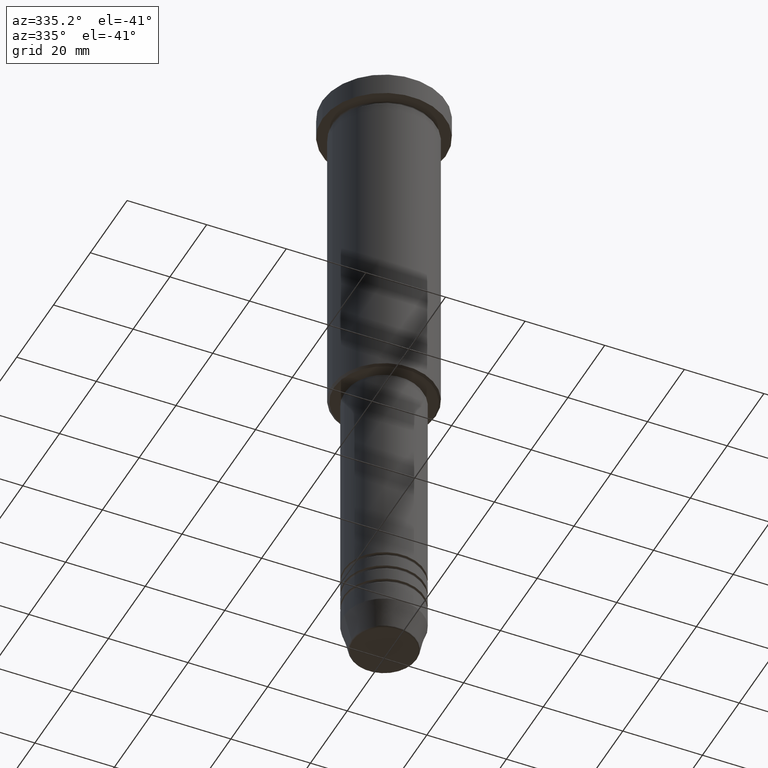
[diagram: clean part render]
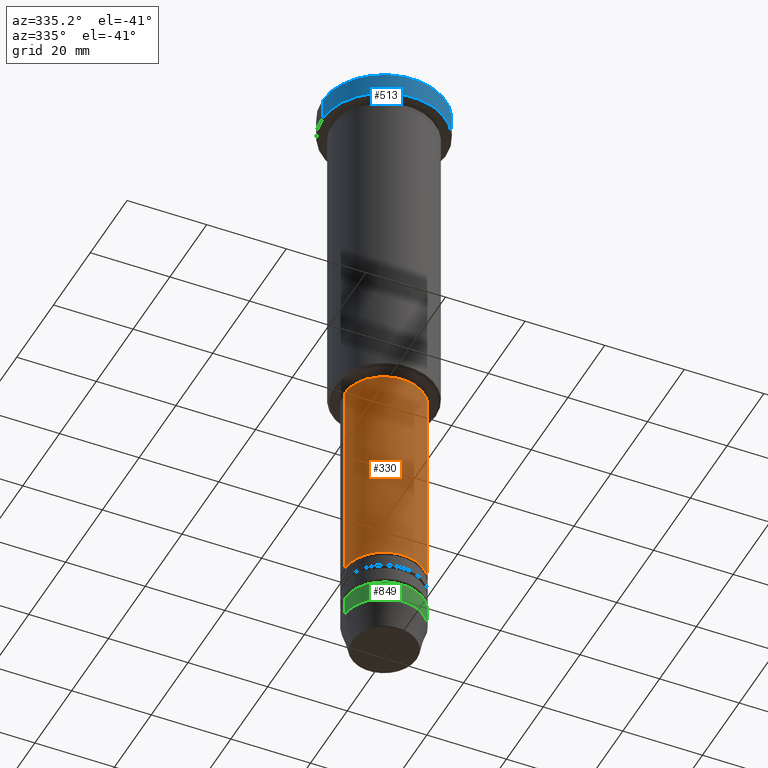
[diagram: same view with three faces highlighted in distinct colors, each labeled with its STEP entity id]
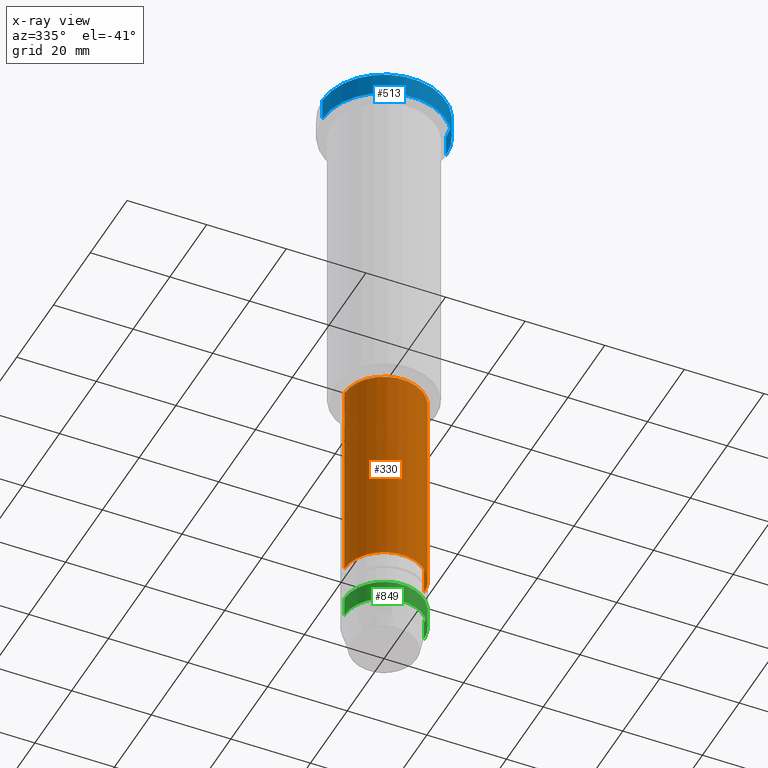
[diagram: x-ray of the same camera — body ghosted, the three highlighted faces saturated]
A machine part, auxiliary view with three faces highlighted in distinct colors.
The next image is the same camera in x-ray (body ghosted, the three faces saturated) — at least one of them is partly hidden behind the body in this view.
Their STEP definitions:

[orange] entity #330 — the highlighted cylindrical surface (partial cylindrical patch) has radius 10 mm, axis along (-0, -0, 1).
#59 = ORIENTED_EDGE ( 'NONE', *, *, #904, .F. ) ;
#83 = DIRECTION ( 'NONE',  ( -0.000000000000000000, -0.000000000000000000, 1.000000000000000000 ) ) ;
#89 = DIRECTION ( 'NONE',  ( 1.000000000000000000, 0.000000000000000000, 0.000000000000000000 ) ) ;
#120 = LINE ( 'NONE', #658, #1022 ) ;
#139 = DIRECTION ( 'NONE',  ( -0.000000000000000000, -0.000000000000000000, 1.000000000000000000 ) ) ;
#158 = VERTEX_POINT ( 'NONE', #476 ) ;
#257 = VERTEX_POINT ( 'NONE', #1084 ) ;
#262 = CIRCLE ( 'NONE', #1134, 10.00000000000000178 ) ;
#296 = DIRECTION ( 'NONE',  ( 1.000000000000000000, 0.000000000000000000, 0.000000000000000000 ) ) ;
#326 = CARTESIAN_POINT ( 'NONE',  ( -9.999999999999998224, 1.224646799147353256E-15, -86.99999999999997158 ) ) ;
#330 = ADVANCED_FACE ( 'NONE', ( #537 ), #907, .T. ) ;
#358 = CARTESIAN_POINT ( 'NONE',  ( 0.000000000000000000, 0.000000000000000000, 0.000000000000000000 ) ) ;
#367 = DIRECTION ( 'NONE',  ( -0.000000000000000000, -0.000000000000000000, 1.000000000000000000 ) ) ;
#400 = LINE ( 'NONE', #956, #646 ) ;
#418 = AXIS2_PLACEMENT_3D ( 'NONE', #427, #558, #478 ) ;
#427 = CARTESIAN_POINT ( 'NONE',  ( 0.000000000000000000, 0.000000000000000000, -86.99999999999997158 ) ) ;
#466 = ORIENTED_EDGE ( 'NONE', *, *, #675, .T. ) ;
#476 = CARTESIAN_POINT ( 'NONE',  ( 10.00000000000000178, 0.000000000000000000, -139.9999999999998579 ) ) ;
#478 = DIRECTION ( 'NONE',  ( 1.000000000000000000, 0.000000000000000000, 0.000000000000000000 ) ) ;
#523 = ORIENTED_EDGE ( 'NONE', *, *, #614, .T. ) ;
#537 = FACE_OUTER_BOUND ( 'NONE', #550, .T. ) ;
#550 = EDGE_LOOP ( 'NONE', ( #59, #523, #466, #1169 ) ) ;
#558 = DIRECTION ( 'NONE',  ( -0.000000000000000000, -0.000000000000000000, 1.000000000000000000 ) ) ;
#614 = EDGE_CURVE ( 'NONE', #1079, #158, #262, .T. ) ;
#628 = CIRCLE ( 'NONE', #418, 9.999999999999998224 ) ;
#646 = VECTOR ( 'NONE', #139, 1000.000000000000000 ) ;
#658 = CARTESIAN_POINT ( 'NONE',  ( 10.00000000000000000, 0.000000000000000000, 0.000000000000000000 ) ) ;
#675 = EDGE_CURVE ( 'NONE', #158, #257, #120, .T. ) ;
#739 = CARTESIAN_POINT ( 'NONE',  ( -10.00000000000000178, 1.224646799147353454E-15, -139.9999999999998579 ) ) ;
#869 = VERTEX_POINT ( 'NONE', #326 ) ;
#904 = EDGE_CURVE ( 'NONE', #1079, #869, #400, .T. ) ;
#907 = CYLINDRICAL_SURFACE ( 'NONE', #1058, 10.00000000000000000 ) ;
#956 = CARTESIAN_POINT ( 'NONE',  ( -10.00000000000000000, 1.224646799147353256E-15, 0.000000000000000000 ) ) ;
#1022 = VECTOR ( 'NONE', #367, 1000.000000000000000 ) ;
#1058 = AXIS2_PLACEMENT_3D ( 'NONE', #358, #83, #89 ) ;
#1079 = VERTEX_POINT ( 'NONE', #739 ) ;
#1084 = CARTESIAN_POINT ( 'NONE',  ( 9.999999999999998224, 0.000000000000000000, -86.99999999999997158 ) ) ;
#1106 = DIRECTION ( 'NONE',  ( -0.000000000000000000, -0.000000000000000000, 1.000000000000000000 ) ) ;
#1110 = CARTESIAN_POINT ( 'NONE',  ( 0.000000000000000000, 0.000000000000000000, -139.9999999999998579 ) ) ;
#1134 = AXIS2_PLACEMENT_3D ( 'NONE', #1110, #1106, #296 ) ;
#1169 = ORIENTED_EDGE ( 'NONE', *, *, #1173, .F. ) ;
#1173 = EDGE_CURVE ( 'NONE', #869, #257, #628, .T. ) ;

[blue] entity #513 — the highlighted cylindrical surface (partial cylindrical patch) has radius 15.5 mm, axis along (-0, -0, 1).
#10 = CIRCLE ( 'NONE', #803, 15.50000000000000000 ) ;
#28 = CIRCLE ( 'NONE', #548, 15.50000000000000000 ) ;
#29 = ORIENTED_EDGE ( 'NONE', *, *, #864, .F. ) ;
#40 = LINE ( 'NONE', #223, #71 ) ;
#71 = VECTOR ( 'NONE', #608, 1000.000000000000000 ) ;
#85 = DIRECTION ( 'NONE',  ( 1.000000000000000000, 0.000000000000000000, 0.000000000000000000 ) ) ;
#124 = ORIENTED_EDGE ( 'NONE', *, *, #932, .T. ) ;
#125 = CARTESIAN_POINT ( 'NONE',  ( -15.50000000000000000, 1.898202538678397557E-15, -0.4999999999999848455 ) ) ;
#145 = CARTESIAN_POINT ( 'NONE',  ( -15.50000000000000000, 1.898202538678397557E-15, 0.000000000000000000 ) ) ;
#184 = CYLINDRICAL_SURFACE ( 'NONE', #987, 15.50000000000000000 ) ;
#223 = CARTESIAN_POINT ( 'NONE',  ( 15.50000000000000000, 0.000000000000000000, 0.000000000000000000 ) ) ;
#261 = CARTESIAN_POINT ( 'NONE',  ( 15.50000000000000000, 0.000000000000000000, -0.4999999999999848455 ) ) ;
#286 = CARTESIAN_POINT ( 'NONE',  ( 0.000000000000000000, 0.000000000000000000, -5.999999999999995559 ) ) ;
#332 = CARTESIAN_POINT ( 'NONE',  ( 0.000000000000000000, 0.000000000000000000, -0.4999999999999848455 ) ) ;
#340 = DIRECTION ( 'NONE',  ( 0.000000000000000000, 0.000000000000000000, -1.000000000000000000 ) ) ;
#439 = DIRECTION ( 'NONE',  ( -0.000000000000000000, -0.000000000000000000, 1.000000000000000000 ) ) ;
#507 = VERTEX_POINT ( 'NONE', #261 ) ;
#512 = DIRECTION ( 'NONE',  ( -0.000000000000000000, -0.000000000000000000, 1.000000000000000000 ) ) ;
#513 = ADVANCED_FACE ( 'NONE', ( #723 ), #184, .T. ) ;
#520 = VERTEX_POINT ( 'NONE', #825 ) ;
#548 = AXIS2_PLACEMENT_3D ( 'NONE', #332, #340, #85 ) ;
#556 = EDGE_LOOP ( 'NONE', ( #29, #1143, #988, #124 ) ) ;
#597 = LINE ( 'NONE', #145, #840 ) ;
#599 = VERTEX_POINT ( 'NONE', #125 ) ;
#608 = DIRECTION ( 'NONE',  ( -0.000000000000000000, -0.000000000000000000, 1.000000000000000000 ) ) ;
#630 = CARTESIAN_POINT ( 'NONE',  ( 0.000000000000000000, 0.000000000000000000, 0.000000000000000000 ) ) ;
#709 = DIRECTION ( 'NONE',  ( 1.000000000000000000, 0.000000000000000000, 0.000000000000000000 ) ) ;
#723 = FACE_OUTER_BOUND ( 'NONE', #556, .T. ) ;
#753 = DIRECTION ( 'NONE',  ( 1.000000000000000000, 0.000000000000000000, 0.000000000000000000 ) ) ;
#803 = AXIS2_PLACEMENT_3D ( 'NONE', #286, #1115, #753 ) ;
#825 = CARTESIAN_POINT ( 'NONE',  ( 15.50000000000000000, 0.000000000000000000, -5.999999999999995559 ) ) ;
#837 = CARTESIAN_POINT ( 'NONE',  ( -15.50000000000000000, 1.898202538678397557E-15, -5.999999999999995559 ) ) ;
#840 = VECTOR ( 'NONE', #512, 1000.000000000000000 ) ;
#864 = EDGE_CURVE ( 'NONE', #1096, #599, #597, .T. ) ;
#885 = EDGE_CURVE ( 'NONE', #520, #507, #40, .T. ) ;
#932 = EDGE_CURVE ( 'NONE', #507, #599, #28, .T. ) ;
#987 = AXIS2_PLACEMENT_3D ( 'NONE', #630, #439, #709 ) ;
#988 = ORIENTED_EDGE ( 'NONE', *, *, #885, .T. ) ;
#1086 = EDGE_CURVE ( 'NONE', #1096, #520, #10, .T. ) ;
#1096 = VERTEX_POINT ( 'NONE', #837 ) ;
#1115 = DIRECTION ( 'NONE',  ( -0.000000000000000000, -0.000000000000000000, 1.000000000000000000 ) ) ;
#1143 = ORIENTED_EDGE ( 'NONE', *, *, #1086, .T. ) ;

[green] entity #849 — the highlighted cylindrical surface (partial cylindrical patch) has radius 10 mm, axis along (-0, -0, 1).
#27 = DIRECTION ( 'NONE',  ( 1.000000000000000000, 0.000000000000000000, 0.000000000000000000 ) ) ;
#33 = ORIENTED_EDGE ( 'NONE', *, *, #366, .T. ) ;
#58 = LINE ( 'NONE', #232, #1098 ) ;
#96 = VERTEX_POINT ( 'NONE', #137 ) ;
#116 = CARTESIAN_POINT ( 'NONE',  ( 0.000000000000000000, 0.000000000000000000, -148.9999999999999716 ) ) ;
#121 = EDGE_CURVE ( 'NONE', #1003, #188, #1027, .T. ) ;
#123 = CARTESIAN_POINT ( 'NONE',  ( -10.00000000000000000, 1.224646799147353256E-15, 0.000000000000000000 ) ) ;
#137 = CARTESIAN_POINT ( 'NONE',  ( 10.00000000000000000, 0.000000000000000000, -153.9999999999999716 ) ) ;
#152 = ORIENTED_EDGE ( 'NONE', *, *, #121, .F. ) ;
#188 = VERTEX_POINT ( 'NONE', #227 ) ;
#192 = EDGE_CURVE ( 'NONE', #96, #533, #58, .T. ) ;
#224 = AXIS2_PLACEMENT_3D ( 'NONE', #676, #600, #27 ) ;
#227 = CARTESIAN_POINT ( 'NONE',  ( -10.00000000000000000, 1.224646799147353256E-15, -148.9999999999999716 ) ) ;
#232 = CARTESIAN_POINT ( 'NONE',  ( 10.00000000000000000, 0.000000000000000000, 0.000000000000000000 ) ) ;
#283 = CIRCLE ( 'NONE', #1099, 10.00000000000000000 ) ;
#303 = DIRECTION ( 'NONE',  ( -0.000000000000000000, -0.000000000000000000, 1.000000000000000000 ) ) ;
#315 = FACE_OUTER_BOUND ( 'NONE', #362, .T. ) ;
#323 = DIRECTION ( 'NONE',  ( -0.000000000000000000, -0.000000000000000000, 1.000000000000000000 ) ) ;
#362 = EDGE_LOOP ( 'NONE', ( #152, #33, #1009, #459 ) ) ;
#366 = EDGE_CURVE ( 'NONE', #1003, #96, #820, .T. ) ;
#382 = VECTOR ( 'NONE', #1108, 1000.000000000000000 ) ;
#459 = ORIENTED_EDGE ( 'NONE', *, *, #717, .F. ) ;
#533 = VERTEX_POINT ( 'NONE', #1180 ) ;
#544 = AXIS2_PLACEMENT_3D ( 'NONE', #745, #1104, #655 ) ;
#600 = DIRECTION ( 'NONE',  ( -0.000000000000000000, -0.000000000000000000, 1.000000000000000000 ) ) ;
#655 = DIRECTION ( 'NONE',  ( 1.000000000000000000, 0.000000000000000000, 0.000000000000000000 ) ) ;
#676 = CARTESIAN_POINT ( 'NONE',  ( 0.000000000000000000, 0.000000000000000000, 0.000000000000000000 ) ) ;
#686 = CYLINDRICAL_SURFACE ( 'NONE', #224, 10.00000000000000000 ) ;
#717 = EDGE_CURVE ( 'NONE', #188, #533, #283, .T. ) ;
#745 = CARTESIAN_POINT ( 'NONE',  ( 0.000000000000000000, 0.000000000000000000, -153.9999999999999716 ) ) ;
#757 = DIRECTION ( 'NONE',  ( 1.000000000000000000, 0.000000000000000000, 0.000000000000000000 ) ) ;
#820 = CIRCLE ( 'NONE', #544, 10.00000000000000000 ) ;
#849 = ADVANCED_FACE ( 'NONE', ( #315 ), #686, .T. ) ;
#999 = CARTESIAN_POINT ( 'NONE',  ( -10.00000000000000000, 1.224646799147353256E-15, -153.9999999999999716 ) ) ;
#1003 = VERTEX_POINT ( 'NONE', #999 ) ;
#1009 = ORIENTED_EDGE ( 'NONE', *, *, #192, .T. ) ;
#1027 = LINE ( 'NONE', #123, #382 ) ;
#1098 = VECTOR ( 'NONE', #323, 1000.000000000000000 ) ;
#1099 = AXIS2_PLACEMENT_3D ( 'NONE', #116, #303, #757 ) ;
#1104 = DIRECTION ( 'NONE',  ( -0.000000000000000000, -0.000000000000000000, 1.000000000000000000 ) ) ;
#1108 = DIRECTION ( 'NONE',  ( -0.000000000000000000, -0.000000000000000000, 1.000000000000000000 ) ) ;
#1180 = CARTESIAN_POINT ( 'NONE',  ( 10.00000000000000000, 0.000000000000000000, -148.9999999999999716 ) ) ;